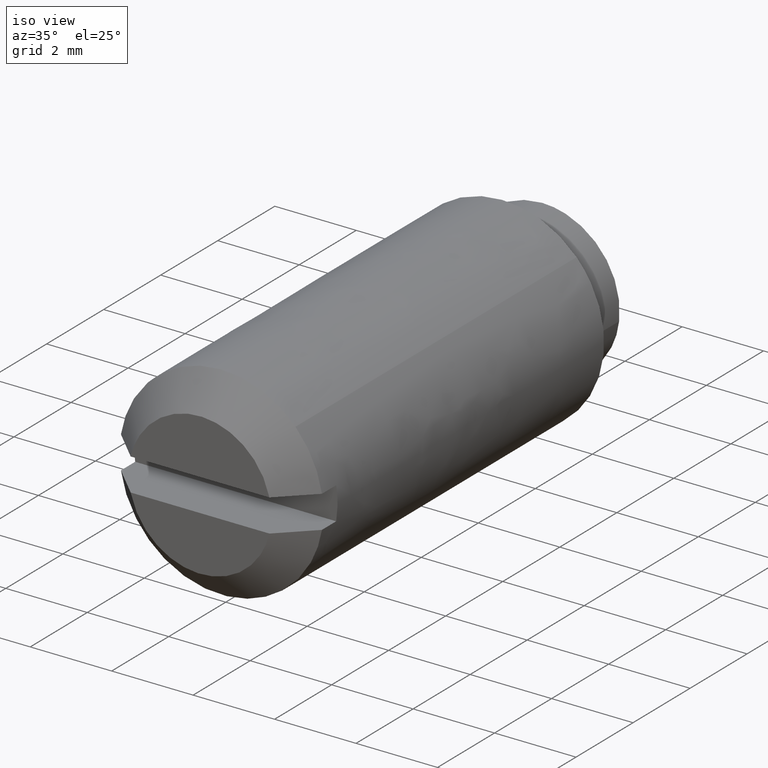
[diagram: clean part render]
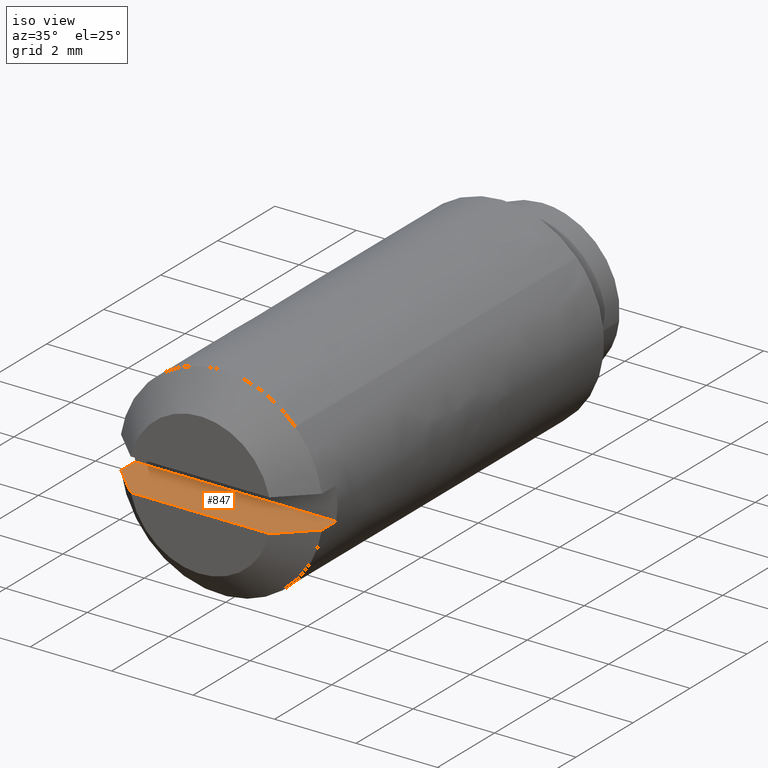
[diagram: same view with one face highlighted and labeled with its STEP entity id]
A machine part, iso view. The second image highlights one B-rep face of the part: STEP entity #847.
In plain terms, the highlighted face is a freeform B-spline surface patch.
Its self-contained STEP definition (entity closure, byte-faithful):
#626=CARTESIAN_POINT('',(-2.467793000000000,-12.150000000000000,-0.400000000000000));
#627=VERTEX_POINT('',#626);
#643=CARTESIAN_POINT('',(-2.467793000000000,-11.650000000000000,-0.400000000000000));
#644=VERTEX_POINT('',#643);
#645=CARTESIAN_POINT('',(-2.467793000000000,-11.650000000000000,-0.400000000000000));
#646=CARTESIAN_POINT('',(-2.467793000000000,-12.150000000000000,-0.400000000000000));
#647=QUASI_UNIFORM_CURVE('',1,(#645,#646),.UNSPECIFIED.,.F.,.U.);
#648=EDGE_CURVE('',#644,#627,#647,.T.);
#739=CARTESIAN_POINT('',(2.467793000000000,-11.650000000000000,-0.400000000000000));
#740=VERTEX_POINT('',#739);
#754=CARTESIAN_POINT('',(2.467793000000000,-12.150000000000000,-0.400000000000000));
#755=VERTEX_POINT('',#754);
#756=CARTESIAN_POINT('',(2.467793000000000,-11.650000000000000,-0.400000000000000));
#757=CARTESIAN_POINT('',(2.467793000000000,-12.150000000000000,-0.400000000000000));
#758=QUASI_UNIFORM_CURVE('',1,(#756,#757),.UNSPECIFIED.,.F.,.U.);
#759=EDGE_CURVE('',#740,#755,#758,.T.);
#802=CARTESIAN_POINT('',(2.467793000000000,-11.650000000000000,-0.400000000000000));
#803=CARTESIAN_POINT('',(-2.467793000000000,-11.650000000000000,-0.400000000000000));
#804=QUASI_UNIFORM_CURVE('',1,(#802,#803),.UNSPECIFIED.,.F.,.U.);
#805=EDGE_CURVE('',#740,#644,#804,.T.);
#810=CARTESIAN_POINT('',(-2.714325511133877,-12.962437116481180,-0.400000000000000));
#811=CARTESIAN_POINT('',(2.714325643516609,-12.962437116481180,-0.400000000000000));
#812=CARTESIAN_POINT('',(-2.714325511133877,-11.587562112383729,-0.400000000000000));
#813=CARTESIAN_POINT('',(2.714325643516609,-11.587562112383729,-0.400000000000000));
#814=B_SPLINE_SURFACE_WITH_KNOTS('',1,1,((#810,#812),(#811,#813)),.UNSPECIFIED.,.F.,.F.,.U.,(2,2),(2,2),(0.0,5.428651154650486),(0.041708589012548,0.958291925077513),.UNSPECIFIED.);
#815=ORIENTED_EDGE('',*,*,#759,.F.);
#816=ORIENTED_EDGE('',*,*,#805,.T.);
#817=ORIENTED_EDGE('',*,*,#648,.T.);
#818=CARTESIAN_POINT('',(-1.703672503740080,-12.900000000000000,-0.400000000000000));
#819=VERTEX_POINT('',#818);
#820=CARTESIAN_POINT('',(-1.703672503740080,-12.900000000000000,-0.400000000000000));
#821=CARTESIAN_POINT('',(-1.764615507487821,-12.840658844627800,-0.400000000000000));
#822=CARTESIAN_POINT('',(-1.825472946364945,-12.781228728592700,-0.400000000000000));
#823=CARTESIAN_POINT('',(-2.080599034620503,-12.531664623679569,-0.400000000000000));
#824=CARTESIAN_POINT('',(-2.274324888380465,-12.340966297384931,-0.400000000000000));
#825=CARTESIAN_POINT('',(-2.467793000000000,-12.150000000000000,-0.400000000000000));
#826=B_SPLINE_CURVE_WITH_KNOTS('',3,(#820,#821,#822,#823,#824,#825),.UNSPECIFIED.,.F.,.U.,(4,2,4),(0.835884064006004,0.875000000000000,1.0),.UNSPECIFIED.);
#827=EDGE_CURVE('',#819,#627,#826,.T.);
#828=ORIENTED_EDGE('',*,*,#827,.F.);
#829=CARTESIAN_POINT('',(1.703672503740080,-12.900000000000000,-0.400000000000000));
#830=VERTEX_POINT('',#829);
#831=CARTESIAN_POINT('',(1.703672503740080,-12.900000000000000,-0.400000000000000));
#832=CARTESIAN_POINT('',(-1.703672503740080,-12.900000000000000,-0.400000000000000));
#833=QUASI_UNIFORM_CURVE('',1,(#831,#832),.UNSPECIFIED.,.F.,.U.);
#834=EDGE_CURVE('',#830,#819,#833,.T.);
#835=ORIENTED_EDGE('',*,*,#834,.F.);
#836=CARTESIAN_POINT('',(2.467793000000000,-12.150000000000000,-0.400000000000000));
#837=CARTESIAN_POINT('',(2.273182650124619,-12.342093660718181,-0.400000000000000));
#838=CARTESIAN_POINT('',(2.078308821835445,-12.533919678951550,-0.400000000000000));
#839=CARTESIAN_POINT('',(1.823167752528801,-12.783478578950630,-0.400000000000000));
#840=CARTESIAN_POINT('',(1.763461716137923,-12.841781534744790,-0.400000000000000));
#841=CARTESIAN_POINT('',(1.703672503740080,-12.900000000000000,-0.400000000000000));
#842=B_SPLINE_CURVE_WITH_KNOTS('',3,(#836,#837,#838,#839,#840,#841),.UNSPECIFIED.,.F.,.U.,(4,2,4),(0.0,0.124999999999999,0.163147383969099),.UNSPECIFIED.);
#843=EDGE_CURVE('',#755,#830,#842,.T.);
#844=ORIENTED_EDGE('',*,*,#843,.F.);
#845=EDGE_LOOP('',(#815,#816,#817,#828,#835,#844));
#846=FACE_OUTER_BOUND('',#845,.T.);
#847=ADVANCED_FACE('',(#846),#814,.T.);